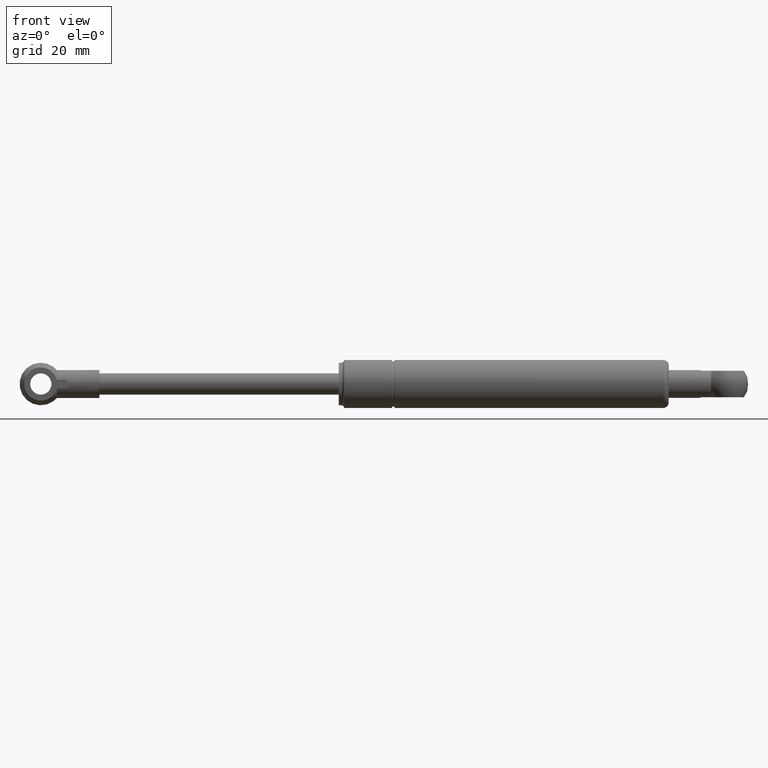
[diagram: clean part render]
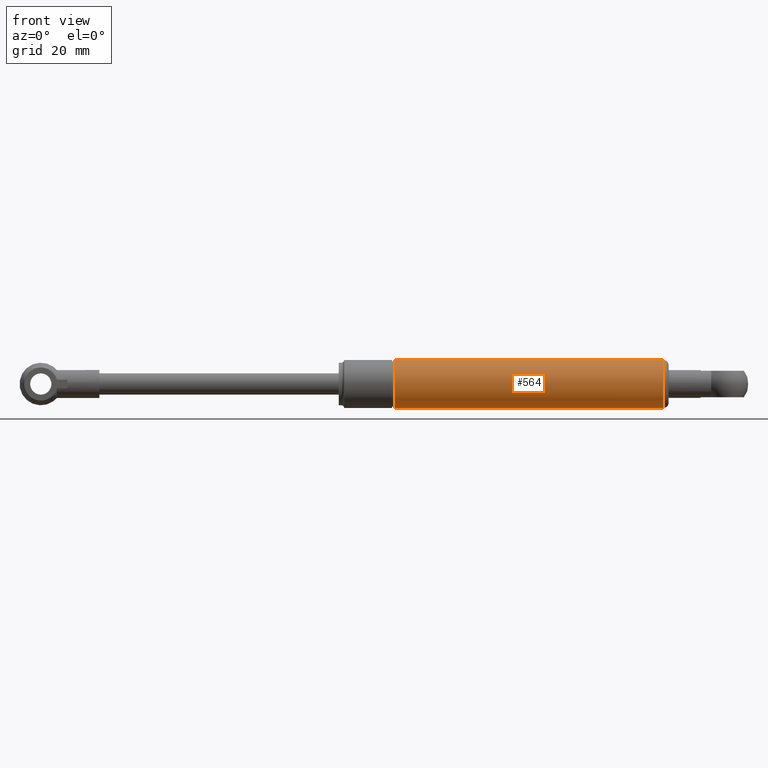
[diagram: same view with one face highlighted and labeled with its STEP entity id]
A machine part, front view. The second image highlights one B-rep face of the part: STEP entity #564.
In plain terms, the highlighted cylindrical surface (bore or boss wall) has radius 9 mm, axis along (1, 0, -0).
Its self-contained STEP definition (entity closure, byte-faithful):
#68=CYLINDRICAL_SURFACE('',#633,9.00000000000001);
#98=FACE_BOUND('',#199,.T.);
#138=FACE_OUTER_BOUND('',#198,.T.);
#198=EDGE_LOOP('',(#419));
#199=EDGE_LOOP('',(#420));
#246=CIRCLE('',#596,9.00000000000001);
#264=CIRCLE('',#631,9.00000000000001);
#289=VERTEX_POINT('',#893);
#307=VERTEX_POINT('',#946);
#335=EDGE_CURVE('',#289,#289,#246,.T.);
#353=EDGE_CURVE('',#307,#307,#264,.T.);
#419=ORIENTED_EDGE('',*,*,#335,.T.);
#420=ORIENTED_EDGE('',*,*,#353,.F.);
#564=ADVANCED_FACE('',(#138,#98),#68,.T.);
#596=AXIS2_PLACEMENT_3D('',#894,#695,#696);
#631=AXIS2_PLACEMENT_3D('',#947,#765,#766);
#633=AXIS2_PLACEMENT_3D('',#950,#769,#770);
#695=DIRECTION('center_axis',(1.,0.,-1.20871055100319E-16));
#696=DIRECTION('ref_axis',(1.20871055100319E-16,0.,1.));
#765=DIRECTION('center_axis',(1.,0.,-1.20871055100319E-16));
#766=DIRECTION('ref_axis',(-1.2335811384724E-16,-1.22464679914735E-16,-1.));
#769=DIRECTION('center_axis',(1.,0.,-1.20871055100319E-16));
#770=DIRECTION('ref_axis',(1.20871055100319E-16,0.,1.));
#893=CARTESIAN_POINT('',(21.,1.10218211923262E-15,-9.00000000000002));
#894=CARTESIAN_POINT('Origin',(21.,0.,-2.53829215710671E-15));
#946=CARTESIAN_POINT('',(122.,0.,9.));
#947=CARTESIAN_POINT('Origin',(122.,0.,-1.4746268722239E-14));
#950=CARTESIAN_POINT('Origin',(62.9999999999999,0.,-7.61487647132012E-15));